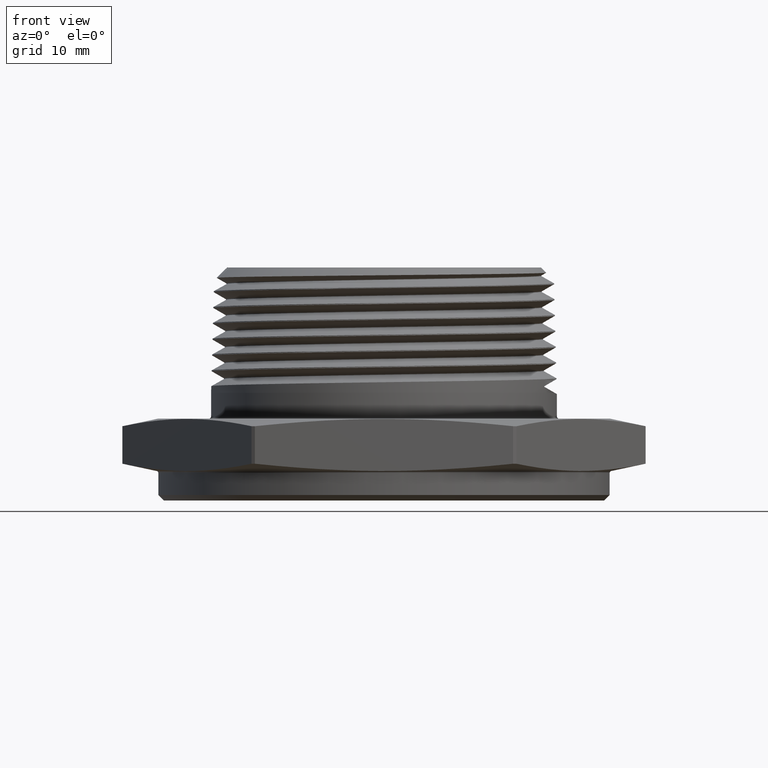
[diagram: clean part render]
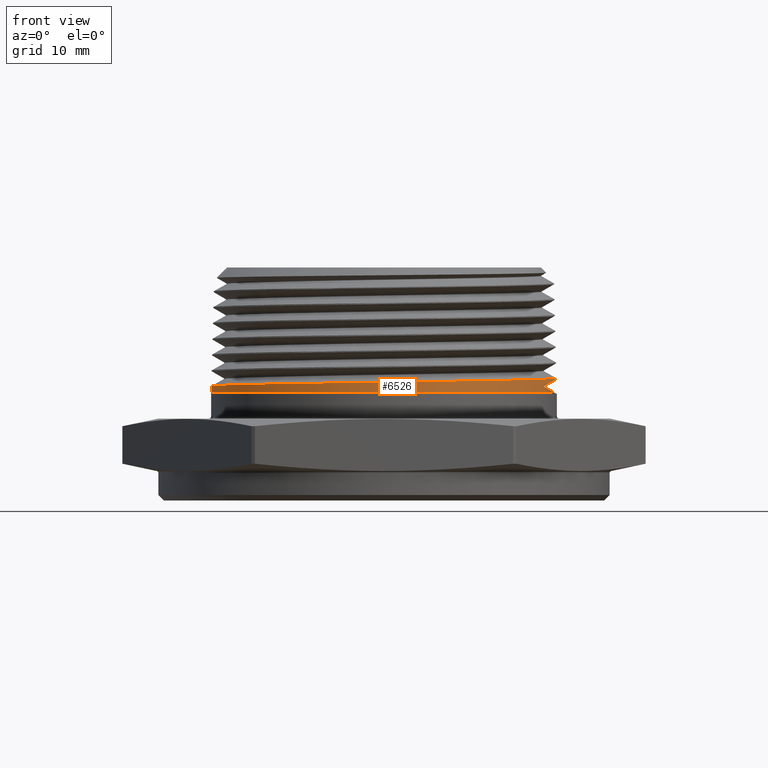
[diagram: same view with one face highlighted and labeled with its STEP entity id]
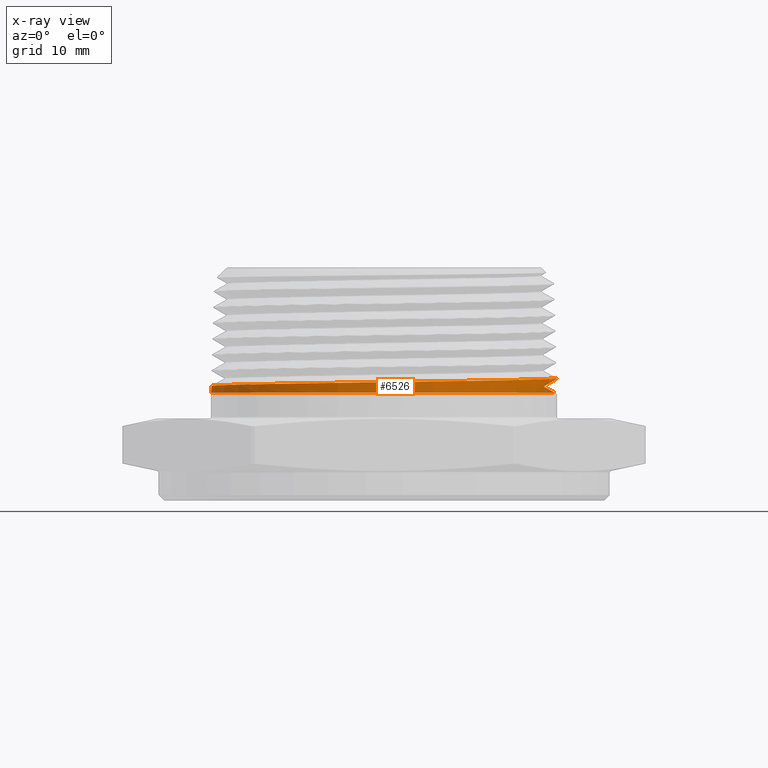
[diagram: x-ray of the same camera — body ghosted, the highlighted face saturated]
A machine part, front view. The second image highlights one B-rep face of the part: STEP entity #6526.
The next image is the same camera in x-ray: the body ghosted, the highlighted face saturated — about 0% of this face is hidden behind the body in this view.
In plain terms, the highlighted conical surface has half-angle 1.47 deg.
Its self-contained STEP definition (entity closure, byte-faithful):
#646 = FACE_OUTER_BOUND ( 'NONE', #5289, .T. ) ;
#651 = CONICAL_SURFACE ( 'NONE', #7744, 0.9531493628266528600, 0.02565634000430927100 ) ;
#777 = LINE ( 'NONE', #2406, #782 ) ;
#779 = CIRCLE ( 'NONE', #7506, 0.9499999999999999600 ) ;
#780 = LINE ( 'NONE', #5599, #786 ) ;
#782 = VECTOR ( 'NONE', #2399, 39.37007874015748100 ) ;
#786 = VECTOR ( 'NONE', #5657, 39.37007874015748100 ) ;
#2333 = CARTESIAN_POINT ( 'NONE',  ( 0.8811025199133278900, -0.3527342361314050300, 0.4678522102968981100 ) ) ;
#2335 = CARTESIAN_POINT ( 'NONE',  ( 0.8811025199133278900, -0.3528113075086274900, 0.4667360015174892900 ) ) ;
#2390 = CARTESIAN_POINT ( 'NONE',  ( 0.9480928721711027200, 1.393294681438513500E-015, 0.5065291082060322500 ) ) ;
#2391 = CARTESIAN_POINT ( 'NONE',  ( 0.9480928721711025000, -0.1210966654002943000, 0.5065291082060321400 ) ) ;
#2395 = CARTESIAN_POINT ( 'NONE',  ( 0.8811025199133278900, -0.3529653853542194500, 0.4645035787355980500 ) ) ;
#2396 = CARTESIAN_POINT ( 'NONE',  ( 0.9254982941360585500, -0.2400672478094610100, 0.4934841224952734600 ) ) ;
#2397 = CARTESIAN_POINT ( 'NONE',  ( 0.8811025199133278900, -0.3527342361314050300, 0.4678522102968981100 ) ) ;
#2398 = CARTESIAN_POINT ( 'NONE',  ( 0.9068879692894917800, -0.2896248769015306000, 0.4496163425970941500 ) ) ;
#2399 = DIRECTION ( 'NONE',  ( -0.02565352539212768100, 0.0000000000000000000, -0.9996708941621514900 ) ) ;
#2400 = CARTESIAN_POINT ( 'NONE',  ( 0.8811025199133278900, -0.3528883572524524300, 0.4656197907497576800 ) ) ;
#2401 = CARTESIAN_POINT ( 'NONE',  ( 0.8811025199133278900, -0.3529653853542194500, 0.4645035787355980500 ) ) ;
#2402 = CARTESIAN_POINT ( 'NONE',  ( 0.9256061520103227000, -0.2238489694169173100, 0.4388093947644817700 ) ) ;
#2403 = CARTESIAN_POINT ( 'NONE',  ( 0.9370334692848701900, -0.1564233916010012200, 0.4322118300599065400 ) ) ;
#2404 = CARTESIAN_POINT ( 'NONE',  ( 0.9479634355445291100, 7.568626325291187400E-014, 0.5115730164504508300 ) ) ;
#2405 = CARTESIAN_POINT ( 'NONE',  ( 0.9479869121601405300, -0.06266101186132082300, 0.5106581757431096800 ) ) ;
#2406 = CARTESIAN_POINT ( 'NONE',  ( -0.9531493628266528600, 0.0000000000000000000, 0.3094869294921573900 ) ) ;
#2407 = CARTESIAN_POINT ( 'NONE',  ( 0.0000000000000000000, 0.0000000000000000000, 0.4322118300599065400 ) ) ;
#2408 = DIRECTION ( 'NONE',  ( 0.0000000000000000000, 0.0000000000000000000, 1.000000000000000000 ) ) ;
#2409 = DIRECTION ( 'NONE',  ( -1.000000000000000000, 0.0000000000000000000, 0.0000000000000000000 ) ) ;
#2412 = CARTESIAN_POINT ( 'NONE',  ( 0.9418527134335976700, -0.1243218958205966900, 0.5097579124095688000 ) ) ;
#2413 = CARTESIAN_POINT ( 'NONE',  ( 0.9238024216960841800, -0.2152505345175590700, 0.5084045664734451200 ) ) ;
#2414 = CARTESIAN_POINT ( 'NONE',  ( 0.9162998900546328600, -0.2453048386581648300, 0.5079507516940942000 ) ) ;
#2415 = CARTESIAN_POINT ( 'NONE',  ( 0.8982568041374715500, -0.3048916045443765300, 0.5070418819935562600 ) ) ;
#2416 = CARTESIAN_POINT ( 'NONE',  ( 0.8876618478493605300, -0.3345156121959760300, 0.5065853369447609300 ) ) ;
#2417 = CARTESIAN_POINT ( 'NONE',  ( 0.8519543963909834700, -0.4206957367866573400, 0.5052235126908377600 ) ) ;
#2418 = CARTESIAN_POINT ( 'NONE',  ( 0.8228177569471316600, -0.4751846174321129900, 0.5043259607049207500 ) ) ;
#2419 = CARTESIAN_POINT ( 'NONE',  ( 0.7711946848358158800, -0.5525148409038832500, 0.5029688051631100400 ) ) ;
#2420 = CARTESIAN_POINT ( 'NONE',  ( 0.7525952394438552000, -0.5776282221721941200, 0.5025110426186119000 ) ) ;
#2421 = CARTESIAN_POINT ( 'NONE',  ( 0.7129099909803768800, -0.6259854126623353200, 0.5015979853628752500 ) ) ;
#2422 = CARTESIAN_POINT ( 'NONE',  ( 0.6920296266888995600, -0.6489950577920597900, 0.5011471903333236700 ) ) ;
#2423 = CARTESIAN_POINT ( 'NONE',  ( 0.6263743216082060500, -0.7146282421239385000, 0.4997921196170491100 ) ) ;
#2424 = CARTESIAN_POINT ( 'NONE',  ( 0.5786134291921908300, -0.7538880673106478400, 0.4988942055938394600 ) ) ;
#2425 = CARTESIAN_POINT ( 'NONE',  ( 0.5138094671035129400, -0.7972138465151144000, 0.4977565067744560400 ) ) ;
#2426 = CARTESIAN_POINT ( 'NONE',  ( 0.5005531165549385000, -0.8056108684834848400, 0.4975268787579872900 ) ) ;
#2427 = CARTESIAN_POINT ( 'NONE',  ( 0.4737497583301480400, -0.8216725070396326800, 0.4970697695064543700 ) ) ;
#2428 = CARTESIAN_POINT ( 'NONE',  ( 0.4602001848920480600, -0.8293421279236181700, 0.4968422190762028000 ) ) ;
#2429 = CARTESIAN_POINT ( 'NONE',  ( 0.4191160517288757800, -0.8512875921324057900, 0.4961624938264114800 ) ) ;
#2430 = CARTESIAN_POINT ( 'NONE',  ( 0.3911470956905061000, -0.8645025394403745800, 0.4957137489916181900 ) ) ;
#2431 = CARTESIAN_POINT ( 'NONE',  ( 0.3340683601044077100, -0.8881457703481804300, 0.4948121010588151200 ) ) ;
#2432 = CARTESIAN_POINT ( 'NONE',  ( 0.3049585735501075300, -0.8985740396946744200, 0.4943592718796534500 ) ) ;
#2433 = CARTESIAN_POINT ( 'NONE',  ( 0.2604268471327963500, -0.9120986545987893600, 0.4936801214992791500 ) ) ;
#2434 = CARTESIAN_POINT ( 'NONE',  ( 0.2454381774522531300, -0.9162532714416690100, 0.4934536233346121200 ) ) ;
#2435 = CARTESIAN_POINT ( 'NONE',  ( 0.2151662161296578300, -0.9238428284619306700, 0.4929992873852991300 ) ) ;
#2436 = CARTESIAN_POINT ( 'NONE',  ( 0.1998476741865405400, -0.9272832561043944400, 0.4927709292780239600 ) ) ;
#2437 = CARTESIAN_POINT ( 'NONE',  ( 0.1233000256291451600, -0.9424969358274535300, 0.4916319962622464600 ) ) ;
#2438 = CARTESIAN_POINT ( 'NONE',  ( 0.06174573773519678000, -0.9485057513869454800, 0.4907339781587568000 ) ) ;
#2439 = CARTESIAN_POINT ( 'NONE',  ( -0.03104656349371732300, -0.9485291689306278900, 0.4893800011544149300 ) ) ;
#2440 = CARTESIAN_POINT ( 'NONE',  ( -0.06205466246737796600, -0.9470279286401043200, 0.4889254301264313600 ) ) ;
#2441 = CARTESIAN_POINT ( 'NONE',  ( -0.1086863470399817300, -0.9424443743347159500, 0.4882417718043894900 ) ) ;
#2442 = CARTESIAN_POINT ( 'NONE',  ( -0.1242642728237446400, -0.9405226709933624000, 0.4880132426386504200 ) ) ;
#2443 = CARTESIAN_POINT ( 'NONE',  ( -0.1551159725128555300, -0.9359410460270727300, 0.4875592502661022000 ) ) ;
#2444 = CARTESIAN_POINT ( 'NONE',  ( -0.1704323075874114300, -0.9332779415460642500, 0.4873331610964460300 ) ) ;
#2445 = CARTESIAN_POINT ( 'NONE',  ( -0.2464755510716875900, -0.9181323163623286200, 0.4862017947281449500 ) ) ;
#2446 = CARTESIAN_POINT ( 'NONE',  ( -0.3056025892825081600, -0.9002113447936158600, 0.4853048137717781400 ) ) ;
#2447 = CARTESIAN_POINT ( 'NONE',  ( -0.3917190512001795800, -0.8645811748828889900, 0.4839451673990792800 ) ) ;
#2448 = CARTESIAN_POINT ( 'NONE',  ( -0.4201436410207480800, -0.8511476150244292600, 0.4834848902240891400 ) ) ;
#2449 = CARTESIAN_POINT ( 'NONE',  ( -0.4751077798274062600, -0.8217601903556695000, 0.4825756580472139700 ) ) ;
#2450 = CARTESIAN_POINT ( 'NONE',  ( -0.5016876481070947600, -0.8058118822912536700, 0.4821261598286245600 ) ) ;
#2451 = CARTESIAN_POINT ( 'NONE',  ( -0.5787865376606751200, -0.7542952775330659100, 0.4807733970156890000 ) ) ;
#2452 = CARTESIAN_POINT ( 'NONE',  ( -0.6266905421628309300, -0.7150908076916880900, 0.4798748353847959200 ) ) ;
#2453 = CARTESIAN_POINT ( 'NONE',  ( -0.6931030204910652000, -0.6487156858014685400, 0.4785051760700361800 ) ) ;
#2454 = CARTESIAN_POINT ( 'NONE',  ( -0.7140496668981661800, -0.6255873280823897000, 0.4780484064912789400 ) ) ;
#2455 = CARTESIAN_POINT ( 'NONE',  ( -0.7533587431343665700, -0.5776859447223756700, 0.4771445755443294900 ) ) ;
#2456 = CARTESIAN_POINT ( 'NONE',  ( -0.7717686350970851500, -0.5528653788290330800, 0.4766964974461163600 ) ) ;
#2457 = CARTESIAN_POINT ( 'NONE',  ( -0.8061199263255088800, -0.5014992637106318000, 0.4757951808037552700 ) ) ;
#2458 = CARTESIAN_POINT ( 'NONE',  ( -0.8220614008802239500, -0.4749537671044046800, 0.4753419420343434900 ) ) ;
#2459 = CARTESIAN_POINT ( 'NONE',  ( -0.8514249365198637300, -0.4201021305789065500, 0.4744344770158928100 ) ) ;
#2460 = CARTESIAN_POINT ( 'NONE',  ( -0.8648885539644795000, -0.3916639427328248400, 0.4739782905548810000 ) ) ;
#2461 = CARTESIAN_POINT ( 'NONE',  ( -0.9006203365428232500, -0.3054285610487181300, 0.4726168251502083100 ) ) ;
#2462 = CARTESIAN_POINT ( 'NONE',  ( -0.9185600875613054700, -0.2462940252641103200, 0.4717199010915470400 ) ) ;
#2463 = CARTESIAN_POINT ( 'NONE',  ( -0.9367636713997337100, -0.1551586535557867900, 0.4703646249349999200 ) ) ;
#2464 = CARTESIAN_POINT ( 'NONE',  ( -0.9413752969005863000, -0.1243208174867693200, 0.4699082785592458300 ) ) ;
#2465 = CARTESIAN_POINT ( 'NONE',  ( -0.9475454281101577400, -0.06201011858096469600, 0.4689951384766787900 ) ) ;
#2466 = CARTESIAN_POINT ( 'NONE',  ( -0.9490676336567023300, -0.03095605982776085000, 0.4685444386134731100 ) ) ;
#2467 = CARTESIAN_POINT ( 'NONE',  ( -0.9490792180391118800, 1.758969223020997200E-016, 0.4680930164504471500 ) ) ;
#3117 =( BOUNDED_CURVE ( )  B_SPLINE_CURVE ( 3, ( #2390, #2391, #2396, #2397 ),
 .UNSPECIFIED., .F., .F. ) 
 B_SPLINE_CURVE_WITH_KNOTS ( ( 4, 4 ),
 ( 3.141592653589793100, 3.516916768191965300 ),
 .UNSPECIFIED. ) 
 CURVE ( )  GEOMETRIC_REPRESENTATION_ITEM ( )  RATIONAL_B_SPLINE_CURVE ( ( 1.000000000000000000, 0.9882953947900428000, 0.9882953947900428000, 1.000000000000000000 ) ) 
 REPRESENTATION_ITEM ( '' )  );
#3118 = B_SPLINE_CURVE_WITH_KNOTS ( 'NONE', 3,
 ( #2333, #2335, #2400, #2401 ),
 .UNSPECIFIED., .F., .F.,
 ( 4, 4 ),
 ( 0.04339158819139616500, 0.04347683535997756700 ),
 .UNSPECIFIED. ) ;
#3119 =( BOUNDED_CURVE ( )  B_SPLINE_CURVE ( 3, ( #2395, #2398, #2402, #2403 ),
 .UNSPECIFIED., .F., .F. ) 
 B_SPLINE_CURVE_WITH_KNOTS ( ( 4, 4 ),
 ( 5.896617983576278200, 6.115318233201394400 ),
 .UNSPECIFIED. ) 
 CURVE ( )  GEOMETRIC_REPRESENTATION_ITEM ( )  RATIONAL_B_SPLINE_CURVE ( ( 1.000000000000000000, 0.9960181535019470000, 0.9960181535019470000, 1.000000000000000000 ) ) 
 REPRESENTATION_ITEM ( '' )  );
#3120 = B_SPLINE_CURVE_WITH_KNOTS ( 'NONE', 3,
 ( #2404, #2405, #2412, #2413, #2414, #2415, #2416, #2417, #2418, #2419, #2420, #2421, #2422, #2423, #2424, #2425, #2426, #2427, #2428, #2429, #2430, #2431, #2432, #2433, #2434, #2435, #2436, #2437, #2438, #2439, #2440, #2441, #2442, #2443, #2444, #2445, #2446, #2447, #2448, #2449, #2450, #2451, #2452, #2453, #2454, #2455, #2456, #2457, #2458, #2459, #2460, #2461, #2462, #2463, #2464, #2465, #2466, #2467 ),
 .UNSPECIFIED., .F., .F.,
 ( 4, 2, 2, 2, 2, 2, 2, 2, 2, 2, 2, 2, 2, 2, 2, 2, 2, 2, 2, 2, 2, 2, 2, 2, 2, 2, 2, 2, 4 ),
 ( 0.9337708013835118700, 0.9385295966405642300, 0.9409089942690903600, 0.9432883918976164800, 0.9480471871546688500, 0.9504265847831949700, 0.9528059824117211000, 0.9575647776687733500, 0.9587544764830364700, 0.9599441752972995800, 0.9623235729258257100, 0.9647029705543518400, 0.9658926693686149500, 0.9670823681828780700, 0.9718411634399303200, 0.9742205610684564500, 0.9754102598827195700, 0.9765999586969826800, 0.9813587539540349300, 0.9837381515825611700, 0.9861175492110873000, 0.9908763444681395500, 0.9932557420966657800, 0.9956351397251919100, 0.9980145373537181500, 1.000393934982244200, 1.005152730239296600, 1.007532127867822600, 1.009911525496348900 ),
 .UNSPECIFIED. ) ;
#3898 = ORIENTED_EDGE ( 'NONE', *, *, #7637, .F. ) ;
#3899 = ORIENTED_EDGE ( 'NONE', *, *, #7638, .F. ) ;
#3900 = ORIENTED_EDGE ( 'NONE', *, *, #7639, .F. ) ;
#3901 = ORIENTED_EDGE ( 'NONE', *, *, #7640, .T. ) ;
#3902 = ORIENTED_EDGE ( 'NONE', *, *, #7641, .T. ) ;
#3903 = ORIENTED_EDGE ( 'NONE', *, *, #7642, .T. ) ;
#3904 = ORIENTED_EDGE ( 'NONE', *, *, #7657, .F. ) ;
#5289 = EDGE_LOOP ( 'NONE', ( #3904, #3903, #3902, #3901, #3900, #3899, #3898 ) ) ;
#5599 = CARTESIAN_POINT ( 'NONE',  ( 0.9531493628266528600, 1.167271316294999500E-016, 0.3094869294921573900 ) ) ;
#5657 = DIRECTION ( 'NONE',  ( 0.02565352539212768100, 3.141650775831452000E-018, -0.9996708941621514900 ) ) ;
#6061 = VERTEX_POINT ( 'NONE', #6776 ) ;
#6067 = VERTEX_POINT ( 'NONE', #6767 ) ;
#6068 = VERTEX_POINT ( 'NONE', #6766 ) ;
#6097 = VERTEX_POINT ( 'NONE', #6743 ) ;
#6115 = VERTEX_POINT ( 'NONE', #6740 ) ;
#6140 = VERTEX_POINT ( 'NONE', #6718 ) ;
#6175 = VERTEX_POINT ( 'NONE', #6715 ) ;
#6526 = ADVANCED_FACE ( 'NONE', ( #646 ), #651, .T. ) ;
#6631 = DIRECTION ( 'NONE',  ( -0.0000000000000000000, -0.0000000000000000000, -1.000000000000000000 ) ) ;
#6632 = CARTESIAN_POINT ( 'NONE',  ( 0.0000000000000000000, 0.0000000000000000000, 0.3094869294921573900 ) ) ;
#6633 = DIRECTION ( 'NONE',  ( -1.000000000000000000, 0.0000000000000000000, 0.0000000000000000000 ) ) ;
#6715 = CARTESIAN_POINT ( 'NONE',  ( -0.9490792180391118800, 1.758969223020997200E-016, 0.4680930164504471500 ) ) ;
#6718 = CARTESIAN_POINT ( 'NONE',  ( 0.9479634355445291100, 7.568626325291187400E-014, 0.5115730164504508300 ) ) ;
#6740 = CARTESIAN_POINT ( 'NONE',  ( 0.9370334692848701900, -0.1564233916010012200, 0.4322118300599065400 ) ) ;
#6743 = CARTESIAN_POINT ( 'NONE',  ( 0.9480928721711027200, 1.393294681438513500E-015, 0.5065291082060322500 ) ) ;
#6766 = CARTESIAN_POINT ( 'NONE',  ( 0.8811025199133278900, -0.3529653853542194500, 0.4645035787355980500 ) ) ;
#6767 = CARTESIAN_POINT ( 'NONE',  ( 0.8811025199133278900, -0.3527342361314050300, 0.4678522102968981100 ) ) ;
#6776 = CARTESIAN_POINT ( 'NONE',  ( -0.9499999999999999600, 0.0000000000000000000, 0.4322118300599065400 ) ) ;
#7506 = AXIS2_PLACEMENT_3D ( 'NONE', #2407, #2408, #2409 ) ;
#7637 = EDGE_CURVE ( 'NONE', #6097, #6067, #3117, .T. ) ;
#7638 = EDGE_CURVE ( 'NONE', #6067, #6068, #3118, .T. ) ;
#7639 = EDGE_CURVE ( 'NONE', #6068, #6115, #3119, .T. ) ;
#7640 = EDGE_CURVE ( 'NONE', #6061, #6115, #779, .T. ) ;
#7641 = EDGE_CURVE ( 'NONE', #6175, #6061, #777, .T. ) ;
#7642 = EDGE_CURVE ( 'NONE', #6140, #6175, #3120, .T. ) ;
#7657 = EDGE_CURVE ( 'NONE', #6140, #6097, #780, .T. ) ;
#7744 = AXIS2_PLACEMENT_3D ( 'NONE', #6632, #6631, #6633 ) ;